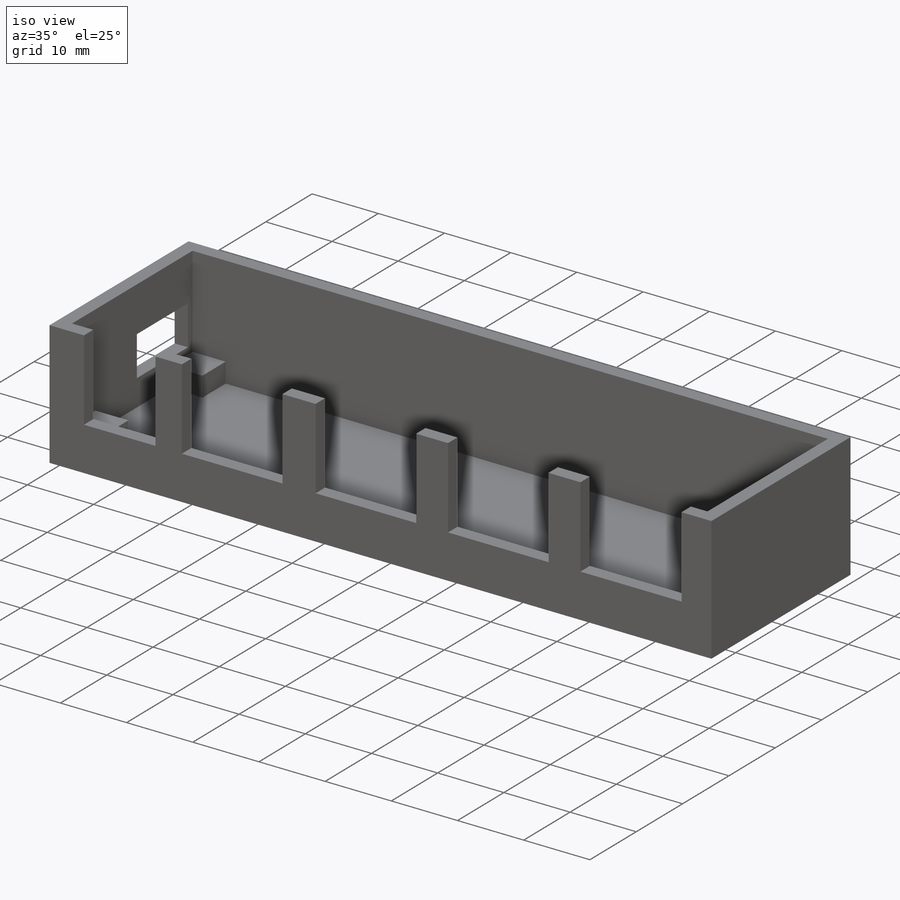
[diagram: iso view]
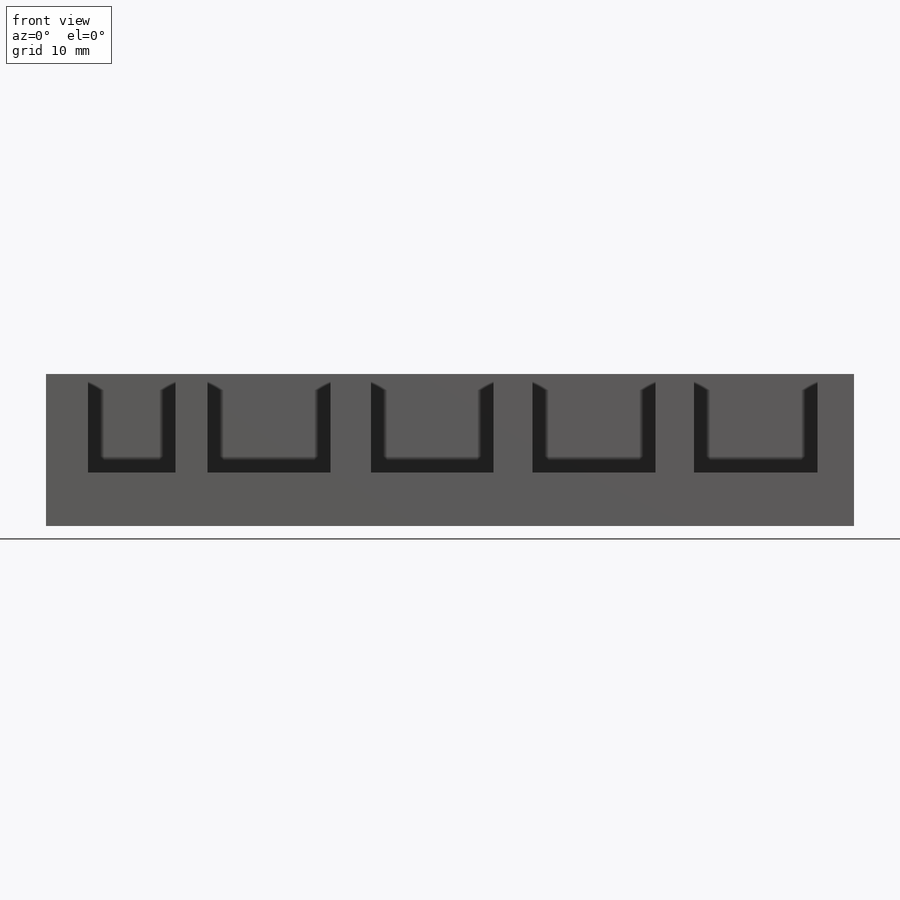
[diagram: front view]
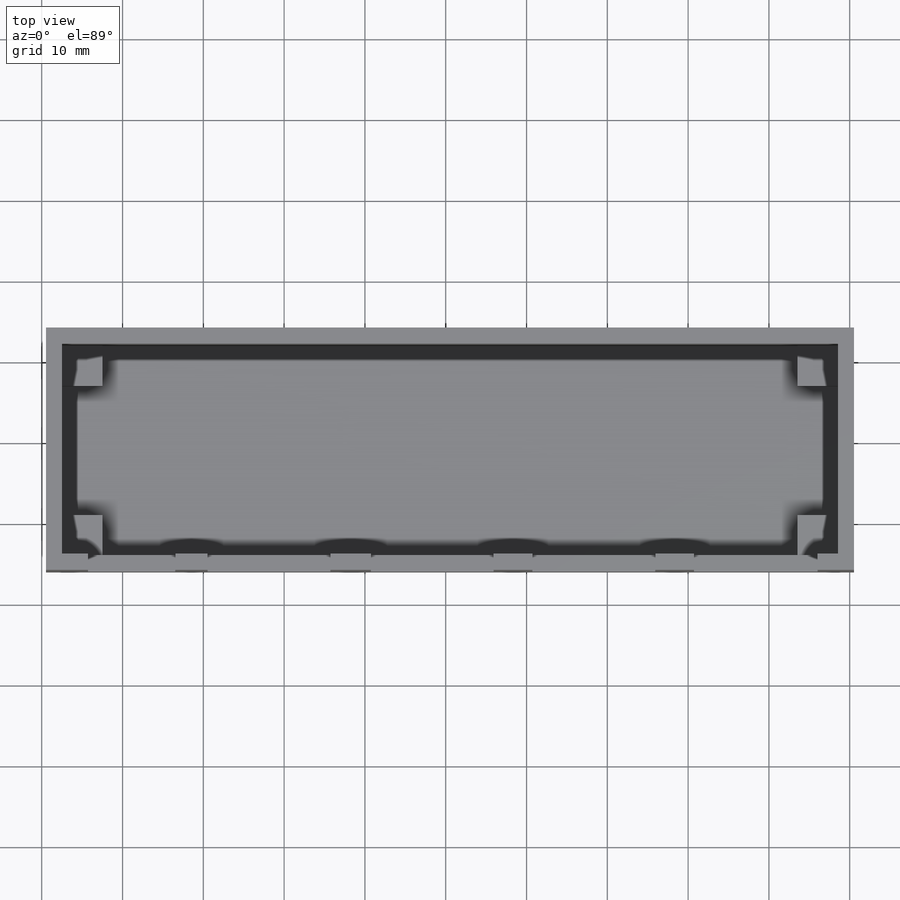
[diagram: top view]
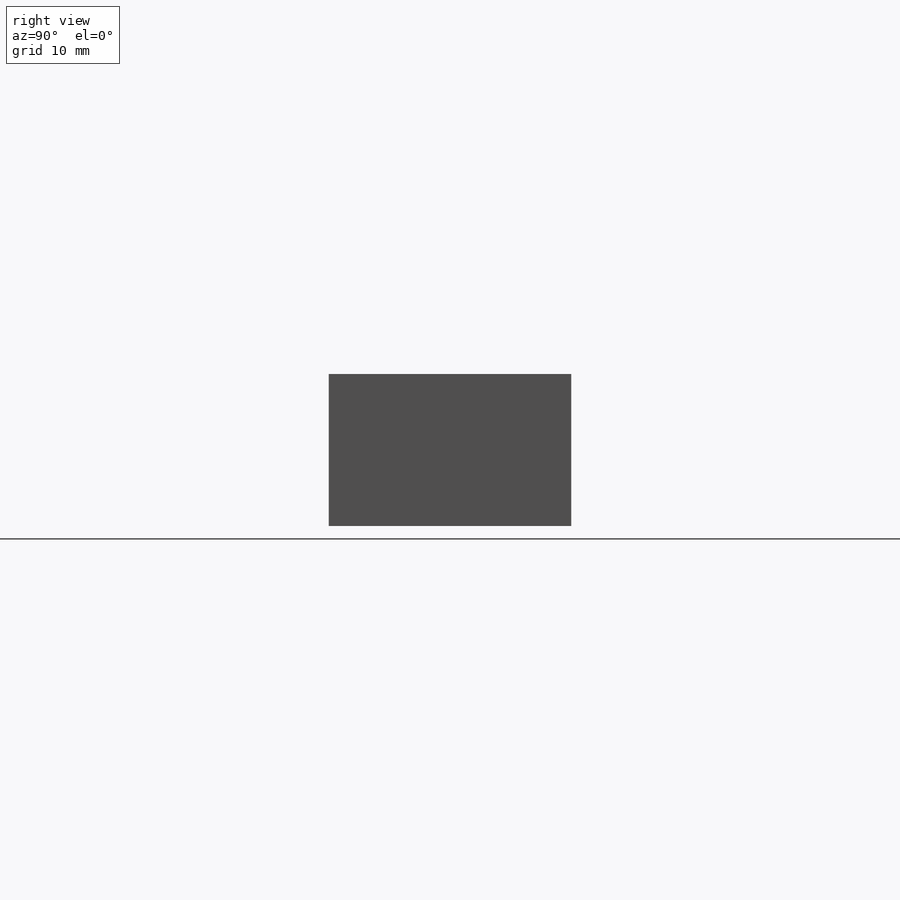
[diagram: right view]
SOLIDWORKS PART (.sldprt)
format: sldprt  version: not decoded by parser v0  size: 297,472 bytes
history: native  units: mm
features: sketch x5, extrude x4, material x1, plane x1, cut_extrude x1 (+12 scaffold rows collapsed)
feature tree (24):
  scaffold x12  (default folders/planes/origin — collapsed)
  material  "Material <not specified>"
  sketch  "Sketch1"  dims[c1.D1=30.0mm c1.D2=2.5mm c1.D3=14.5mm c1.D6=5.5mm c1.D7=3.2mm c1.D8=47.5mm c1.D9=45.0mm c2.D9=90.0deg c3.D9=14.0mm c3.D6=2.0mm c3.D5=18.0mm c3.D4=14.7mm c4.D6=4.1mm c4.D10=14.7mm c4.D11=4.1mm c4.D12=14.7mm c4.D3=17.8mm c4.D13=96.0mm c5.D12=4.8mm c5.D11=37.8mm c5.D10=4.8mm c5.D6=15.2mm c5.D4=5.0mm c5.D13=15.2mm c5.D1=2.0mm]
  extrude  "Boss-Extrude1"  Depth=16.8mm
  plane  "Plane1"
  extrude  "Boss-Extrude2"  [1 undecoded]
  sketch  "Sketch1<3>"  dims[D1=2.0mm]
  extrude  "Boss-Extrude4"  [1 undecoded]
  sketch  "Sketch1<6>"  dims[D1=4.6mm]
  sketch  "Sketch3"  dims[D1=5.0mm]
  extrude  "Boss-Extrude5"  Depth=3mm
  sketch  "Sketch4"  dims[D1=3.0mm D2=6.0mm]
  cut_extrude  "Cut-Extrude2"  Depth=4mm
decode coverage: 8 of 10 modeling features carry decoded parameters
note: 2 parameter values undecoded
note: suppression state not decoded; provenance and decode notes live in map.json
